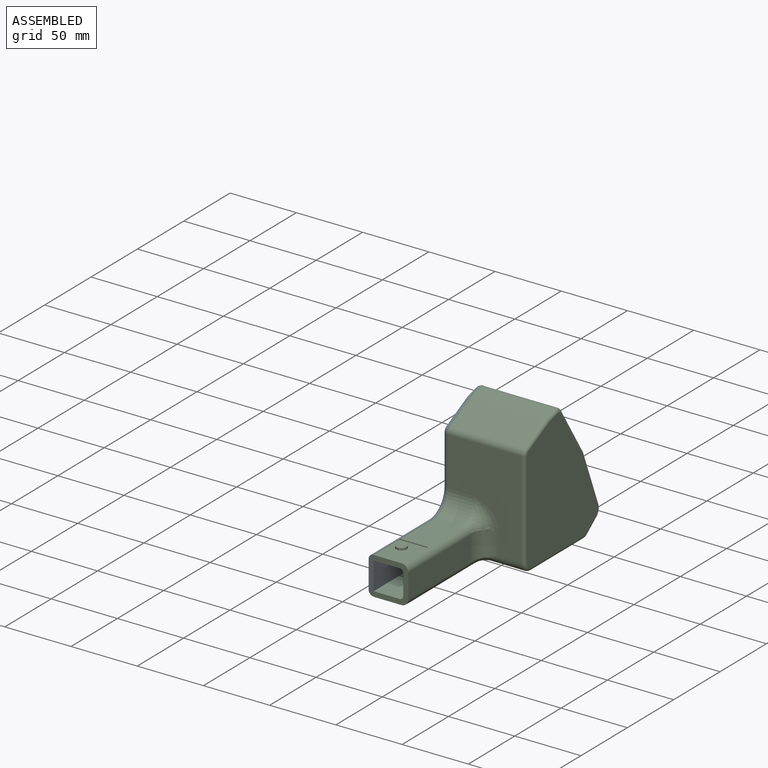
[diagram: assembled view]
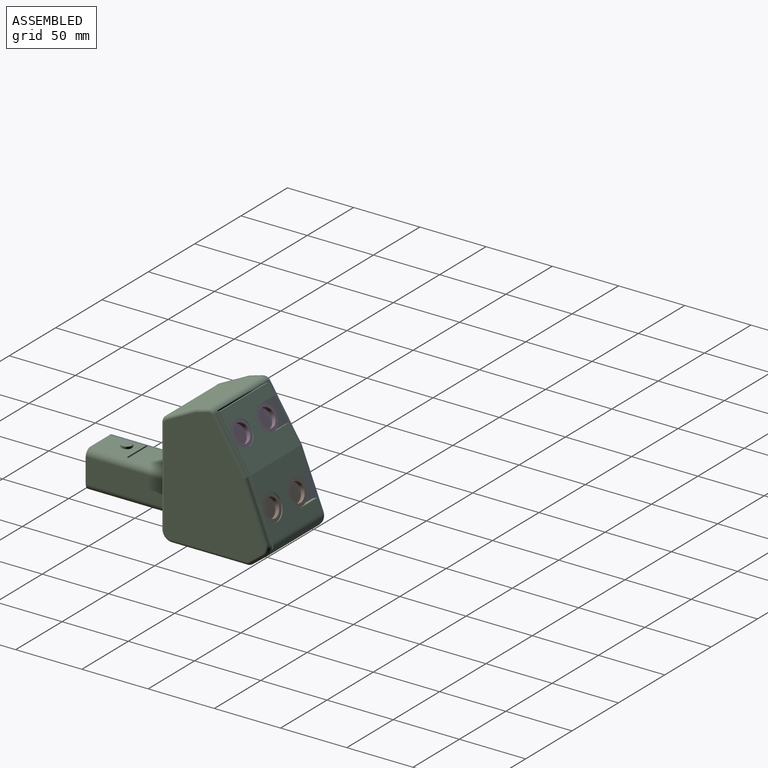
[diagram: assembled view, second angle]
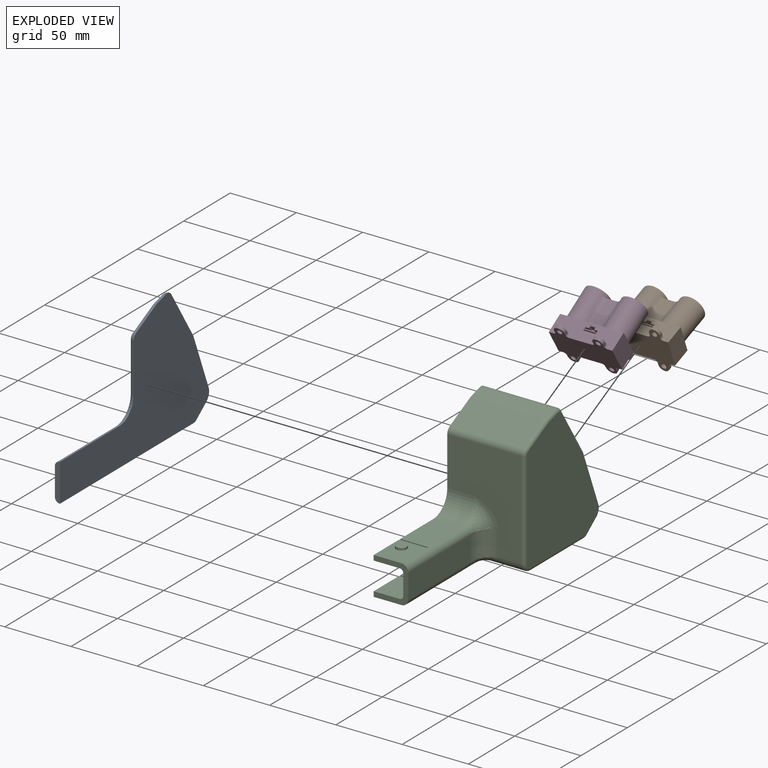
[diagram: exploded view]
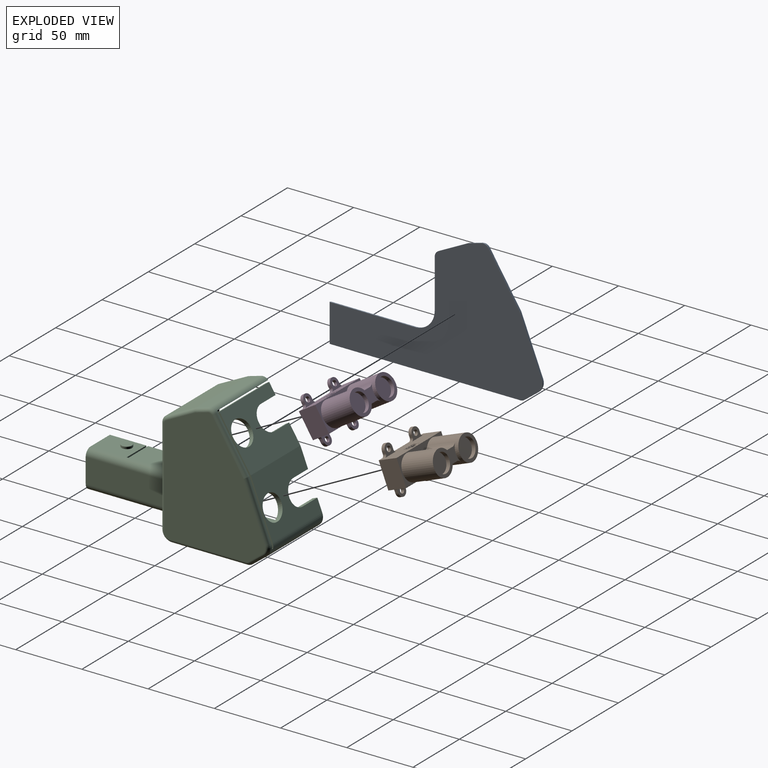
[diagram: exploded view, second angle]
ASSEMBLY  parts=4 mates=6
PART A: 35 faces, bbox 161.5x99.6x8.3 mm
  f0: plane 41.58x16.52mm, normal (-0.93,0.37,0), area 0.1mm2, adj f1,f15,f17,f22
  f1: cylinder r=7.62mm len=8.85mm, axis (0,0,-1), area 0mm2, adj f0,f2,f17,f21
  f2: plane 10.77x8.28mm, normal (-0.61,-0.79,0), area 0mm2, adj f1,f3,f17,f20
  f3: cylinder r=5.08mm len=3.1mm, axis (0,0,-1), area 0mm2, adj f2,f4,f17,f19
  f4: plane 144.07x0mm, normal (0,-1,0), area 0.4mm2, adj f3,f5,f17,f18
  f5: plane 28.58x3.81mm, normal (1,0,0), area 102.7mm2, adj f4,f6,f16,f17,f18,f32
  f6: plane 64.14x0mm, normal (0,1,0), area 0.2mm2, adj f5,f7,f17,f32
  f7: cylinder r=15.24mm len=15.24mm, axis (0,0,-1), area 0.1mm2, adj f6,f8,f17,f31
  f8: plane 36.89x0mm, normal (1,0,0), area 0.1mm2, adj f7,f9,f17,f30
  f9: cylinder r=5.08mm len=4.53mm, axis (0,0,-1), area 0mm2, adj f8,f10,f17,f29
  f10: plane 21.91x11.11mm, normal (0.45,0.89,0), area 0.1mm2, adj f9,f11,f17,f28
  f11: cylinder r=5.08mm len=0.9mm, axis (0,0,-1), area 0mm2, adj f10,f12,f17,f27
  f12: plane 9.39x2.68mm, normal (0.27,0.96,0), area 0mm2, adj f11,f13,f17,f26
  f13: cylinder r=5.08mm len=5.13mm, axis (0,0,-1), area 0mm2, adj f12,f14,f17,f25
  f14: plane 1.03x0.75mm, normal (-0.81,0.59,0), area 0mm2, adj f13,f15,f17,f24
  f15: plane 37.13x23.62mm, normal (-0.84,0.54,0), area 0.1mm2, adj f0,f14,f17,f23
  f16: plane 157.1x91.95mm, normal (0,0,1), area 6869.1mm2, adj f5,f18,f19,f20,f21,f22,f23,f24
  f17: plane 160.91x99.57mm, normal (0,0,-1), area 8543mm2, adj f0,f1,f2,f3,f4,f5,f6,f7
  f18: cylinder r=3.81mm len=144.07mm, axis (-1,0,0), area 862.2mm2, adj f4,f5,f16,f19
  f19: torus R=1.27mm, axis (0,0,1), area 14.5mm2, adj f3,f16,f18,f20
  f20: cylinder r=3.81mm len=13.09mm, axis (-0.79,0.61,0), area 81.3mm2, adj f2,f16,f19,f21
  f21: torus R=3.81mm, axis (0,0,1), area 48.3mm2, adj f1,f16,f20,f22
  f22: cylinder r=3.81mm len=42.99mm, axis (0.37,0.93,0), area 267mm2, adj f0,f16,f21,f23
  f23: cylinder r=3.81mm len=39.17mm, axis (0.54,0.84,0), area 262.2mm2, adj f15,f16,f22,f24
  f24: cylinder r=3.81mm len=3.83mm, axis (0.59,0.81,0), area 6.7mm2, adj f14,f16,f23,f25
  f25: torus R=1.27mm, axis (0,0,1), area 24mm2, adj f13,f16,f24,f26
  f26: cylinder r=3.81mm len=10.44mm, axis (0.96,-0.27,0), area 58.4mm2, adj f12,f16,f25,f27
  f27: torus R=1.27mm, axis (0,0,1), area 4.2mm2, adj f11,f16,f26,f28
  f28: cylinder r=3.81mm len=23.63mm, axis (0.89,-0.45,0), area 147mm2, adj f10,f16,f27,f29
  f29: torus R=1.27mm, axis (0,0,1), area 24.4mm2, adj f9,f16,f28,f30
  f30: cylinder r=3.81mm len=36.89mm, axis (0,-1,0), area 220.7mm2, adj f8,f16,f29,f31
  f31: torus R=19.05mm, axis (0,0,1), area 156.3mm2, adj f7,f16,f30,f32
  f32: cylinder r=3.81mm len=64.14mm, axis (1,0,0), area 383.8mm2, adj f5,f6,f16,f31
  f33: cylinder r=3.97mm len=7.94mm, axis (0,0,-1), area 44.3mm2, adj f16,f34
  f34: plane 7.94x7.94mm, normal (0,0,1), area 49.5mm2, adj f33
PART B: 74 faces, bbox 48x40x35.5 mm
  f0: plane 48x14.5mm, normal (0,0,1), area 581mm2, adj f10,f11,f12,f17,f22,f37,f38,f39
  f1: extruded ~22.5x3.45mm, area 88mm2, adj f2,f42,f43,f44
  f2: plane 22.5x6.46mm, normal (0,0,1), area 145.3mm2, adj f1,f3,f43,f44
  f3: extruded ~22.5x3.45mm, area 88mm2, adj f2,f41,f43,f44
  f4: extruded ~22.5x3.45mm, area 88mm2, adj f5,f41,f43,f44
  f5: plane 22.5x6.46mm, normal (0,0,-1), area 145.3mm2, adj f4,f6,f43,f44
  f6: extruded ~22.5x3.45mm, area 88mm2, adj f5,f42,f43,f44
  f7: plane 19x19mm, normal (0,1,0), area 129.6mm2, adj f42,f45
  f8: plane 19x19mm, normal (0,1,0), area 129.6mm2, adj f41,f46
  f9: plane 48x14.5mm, normal (0,0,-1), area 636mm2, adj f10,f11,f12,f27,f32,f33,f34,f35
  f10: plane 20x14.5mm, normal (-1,0,0), area 290mm2, adj f0,f9,f12,f43
  f11: plane 20x14.5mm, normal (1,0,0), area 290mm2, adj f0,f9,f12,f43
  f12: plane 48x35.52mm, normal (0,-1,0), area 1137.5mm2, adj f0,f9,f10,f11,f13,f14,f15,f16
  f13: plane 2.5x1.5mm, normal (-1,0,0), area 3.8mm2, adj f12,f14,f17,f40
  f14: cylinder r=4.01mm len=8.01mm, axis (0,-1,0), area 31.5mm2, adj f12,f13,f15,f17
  f15: plane 2.5x2mm, normal (1,0,0), area 5mm2, adj f12,f14,f17,f39
  f16: cylinder r=2mm len=4mm, axis (0,-1,0), area 31.4mm2, adj f12,f17
  f17: plane 12x7.76mm, normal (0,1,0), area 44.4mm2, adj f0,f13,f14,f15,f16,f39,f40
  f18: cylinder r=4.01mm len=8.01mm, axis (0,-1,0), area 31.5mm2, adj f12,f19,f20,f22
  f19: plane 2.5x1.5mm, normal (1,0,0), area 3.8mm2, adj f12,f18,f22,f38
  f20: plane 2.5x2mm, normal (-1,0,0), area 5mm2, adj f12,f18,f22,f37
  f21: cylinder r=2mm len=4mm, axis (0,-1,0), area 31.4mm2, adj f12,f22
  f22: plane 12x7.76mm, normal (0,1,0), area 44.4mm2, adj f0,f18,f19,f20,f21,f37,f38
  f23: cylinder r=4.01mm len=8.01mm, axis (0,-1,0), area 31.5mm2, adj f12,f24,f25,f27
  f24: plane 2.5x1.5mm, normal (-1,0,0), area 3.8mm2, adj f12,f23,f27,f36
  f25: plane 2.5x2mm, normal (1,0,0), area 5mm2, adj f12,f23,f27,f35
  f26: cylinder r=2mm len=4mm, axis (0,-1,0), area 31.4mm2, adj f12,f27
  f27: plane 12x7.76mm, normal (0,1,0), area 44.4mm2, adj f9,f23,f24,f25,f26,f35,f36
  f28: plane 2.5x1.5mm, normal (1,0,0), area 3.8mm2, adj f12,f29,f32,f33
  f29: cylinder r=4.01mm len=8.01mm, axis (0,-1,0), area 31.5mm2, adj f12,f28,f30,f32
  f30: plane 2.5x2mm, normal (-1,0,0), area 5mm2, adj f12,f29,f32,f34
  f31: cylinder r=2mm len=4mm, axis (0,-1,0), area 31.4mm2, adj f12,f32
  f32: plane 12x7.76mm, normal (0,1,0), area 44.4mm2, adj f9,f28,f29,f30,f31,f33,f34
  f33: cylinder r=2mm len=2.5mm, axis (0,-1,0), area 7.9mm2, adj f9,f12,f28,f32
  f34: cylinder r=2mm len=2.5mm, axis (0,1,0), area 7.9mm2, adj f9,f12,f30,f32
  f35: cylinder r=2mm len=2.5mm, axis (0,-1,0), area 7.9mm2, adj f9,f12,f25,f27
  f36: cylinder r=2mm len=2.5mm, axis (0,1,0), area 7.9mm2, adj f9,f12,f24,f27
  f37: cylinder r=2mm len=2.5mm, axis (0,1,0), area 7.9mm2, adj f0,f12,f20,f22
  f38: cylinder r=2mm len=2.5mm, axis (0,-1,0), area 7.9mm2, adj f0,f12,f19,f22
  f39: cylinder r=2mm len=2.5mm, axis (0,-1,0), area 7.9mm2, adj f0,f12,f15,f17
  f40: cylinder r=2mm len=2.5mm, axis (0,1,0), area 7.9mm2, adj f0,f12,f13,f17
  f41: cylinder r=9.5mm len=25.5mm, axis (0,1,0), area 1209.4mm2, adj f3,f4,f8,f43,f44
  f42: cylinder r=9.5mm len=25.5mm, axis (0,1,0), area 1209.4mm2, adj f1,f6,f7,f43,f44
  f43: plane 48x20mm, normal (0,1,0), area 301.3mm2, adj f0,f1,f2,f3,f4,f5,f6,f9
  f44: plane 13.36x12.69mm, normal (0,1,0), area 91.6mm2, adj f1,f2,f3,f4,f5,f6,f41,f42
  f45: cylinder r=7mm len=14mm, axis (0,1,0), area 131.9mm2, adj f7,f47
  f46: cylinder r=7mm len=14mm, axis (0,1,0), area 131.9mm2, adj f8,f48
  f47: plane 14x14mm, normal (0,1,0), area 153.9mm2, adj f45
  f48: plane 14x14mm, normal (0,1,0), area 153.9mm2, adj f46
  f49: plane 5.5x0.1mm, normal (1,0,0), area 0.5mm2, adj f0,f50,f52,f53
  f50: plane 10x0.1mm, normal (0,-1,0), area 1mm2, adj f0,f49,f51,f53
  f51: plane 5.5x0.1mm, normal (-1,0,0), area 0.5mm2, adj f0,f50,f52,f53
  f52: plane 10x0.1mm, normal (0,1,0), area 1mm2, adj f0,f49,f51,f53
  f53: plane 10x5.5mm, normal (0,0,1), area 24.8mm2, adj f49,f50,f51,f52,f54,f55,f56,f57
  f54: plane 3.9x2.62mm, normal (0,-1,0), area 10.2mm2, adj f53,f55,f61,f62
  f55: plane 3.9x2.55mm, normal (1,0,0), area 9.9mm2, adj f53,f54,f56,f62
  f56: plane 9.25x3.9mm, normal (0,1,0), area 36.1mm2, adj f53,f55,f57,f62
  f57: plane 3.9x2.55mm, normal (-1,0,0), area 9.9mm2, adj f53,f56,f58,f62
  f58: plane 3.9x2.82mm, normal (0,-1,0), area 11mm2, adj f53,f57,f59,f62
  f59: plane 3.9x1.75mm, normal (-1,0,0), area 6.8mm2, adj f53,f58,f60,f62
  f60: plane 3.9x3.81mm, normal (0,-1,0), area 14.8mm2, adj f53,f59,f61,f62
  f61: plane 3.9x1.75mm, normal (1,0,0), area 6.8mm2, adj f53,f54,f60,f62
  f62: plane 9.25x4.3mm, normal (0,0,1), area 24.3mm2, adj f54,f55,f56,f57,f58,f59,f60,f61
  f63: plane 3.9x0.71mm, normal (1,0,0), area 2.8mm2, adj f62,f64,f66,f67
  f64: plane 8.36x3.9mm, normal (0,-1,0), area 32.6mm2, adj f62,f63,f65,f67
  f65: plane 3.9x0.71mm, normal (-1,0,0), area 2.8mm2, adj f62,f64,f66,f67
  f66: plane 8.36x3.9mm, normal (0,1,0), area 32.6mm2, adj f62,f63,f65,f67
  f67: plane 8.36x0.71mm, normal (0,0,1), area 5.9mm2, adj f63,f64,f65,f66
  f68: plane 14x14mm, normal (0,-1,0), area 153.9mm2, adj f70
  f69: plane 14x14mm, normal (0,1,0), area 153.9mm2, adj f70
  f70: cylinder r=7mm len=20.5mm, axis (0,1,0), area 901.6mm2, adj f68,f69
  f71: plane 14x14mm, normal (0,-1,0), area 153.9mm2, adj f73
  f72: plane 14x14mm, normal (0,1,0), area 153.9mm2, adj f73
  f73: cylinder r=7mm len=20.5mm, axis (0,1,0), area 901.6mm2, adj f71,f72
PART C: 125 faces, bbox 59x162x102.3 mm
  f0: plane 41.58x16.52mm, normal (0,0.93,0.37), area 48.7mm2, adj f13,f74,f80,f99
  f1: plane 1.27x1.18mm, normal (0,0.36,-0.93), area 1.6mm2, adj f3,f74,f77,f79
  f2: plane 53.76x41.75mm, normal (0,0.93,0.37), area 1673.1mm2, adj f6,f12,f14,f64,f65,f66,f67,f77
  f3: plane 1.27x1.09mm, normal (0,-0.53,0.85), area 1.6mm2, adj f1,f74,f77,f79
  f4: plane 53.59x44.83mm, normal (0,-0.93,-0.36), area 1854mm2, adj f5,f12,f14,f35,f64,f65,f66,f67
  f5: plane 53.59x36.86mm, normal (0,-0.85,-0.53), area 1607.7mm2, adj f4,f9,f12,f68,f69,f70,f71,f76
  f6: plane 53.74x37.27mm, normal (0,0.84,0.54), area 1633.3mm2, adj f2,f9,f12,f68,f69,f70,f71,f76
  f7: plane 44.57x17.39mm, normal (0,-0.93,-0.36), area 21.5mm2, adj f8,f19,f74,f110
  f8: plane 55.47x38.52mm, normal (0,-0.85,-0.53), area 48mm2, adj f7,f17,f19,f36,f74,f75,f109
  f9: plane 9.42x7.6mm, normal (-1,0,0), area 29.4mm2, adj f5,f6,f70,f76
  f10: plane 53.82x19.76mm, normal (0,0,-1), area 1063.5mm2, adj f17,f20,f60,f73
  f11: plane 27.46x19.76mm, normal (0,0,1), area 542.7mm2, adj f25,f29,f63,f72
  f12: plane 29.24x17.15mm, normal (-1,0,0), area 108.3mm2, adj f2,f4,f5,f6,f66,f68
  f13: plane 37.44x23.82mm, normal (0,0.84,0.54), area 48.2mm2, adj f0,f74,f81,f100
  f14: plane 132.18x27.58mm, normal (-1,0,0), area 553mm2, adj f2,f4,f15,f28,f34,f35,f48,f62
  f15: plane 115.33x55.95mm, normal (0,0,-1), area 4418.6mm2, adj f14,f48,f49,f53,f62,f91
  f16: plane 35.4x21.03mm, normal (0,0,1), area 744.5mm2, adj f17,f50,f51,f60
  f17: plane 90.75x74.8mm, normal (-1,0,0), area 554.6mm2, adj f8,f10,f16,f20,f31,f32,f33,f36
  f18: plane 27.46x3.81mm, normal (-1,0,0), area 104.6mm2, adj f23,f26,f29,f59
  f19: plane 90.5x73.66mm, normal (-1,0,0), area 3299.9mm2, adj f7,f8,f104,f105,f106,f107,f108,f109
  f20: plane 75.76x53.79mm, normal (0,1,0), area 3185.2mm2, adj f10,f17,f27,f41,f72,f73,f118,f120
  f21: plane 65.27x32.9mm, normal (-1,0,0), area 1204.6mm2, adj f101,f102,f103,f114,f117,f120
  f22: plane 66.83x18.57mm, normal (1,0,0), area 1228.1mm2, adj f29,f51,f52,f53,f55,f56
  f23: plane 27.46x21.03mm, normal (0,0,1), area 528.1mm2, adj f18,f29,f44,f51,f59
  f24: plane 27.46x21.03mm, normal (0,0,-1), area 528.1mm2, adj f25,f29,f46,f53,f63
  f25: plane 27.46x3.81mm, normal (-1,0,0), area 104.6mm2, adj f11,f24,f29,f63
  f26: plane 27.46x19.76mm, normal (0,0,-1), area 542.7mm2, adj f18,f29,f59,f73
  f27: plane 82.55x15.88mm, normal (-1,0,0), area 1310.5mm2, adj f20,f29,f72,f73
  f28: plane 116.81x54.05mm, normal (0,0,1), area 4164.3mm2, adj f14,f35,f41,f62,f72,f111,f113,f114
  f29: plane 28.58x26.11mm, normal (0,-1,0), area 270.5mm2, adj f11,f18,f22,f23,f24,f25,f26,f27
  f30: plane 94.49x76.45mm, normal (1,0,0), area 5457.1mm2, adj f88,f89,f90,f91,f92,f93,f94,f95
  f31: plane 73.08x55.95mm, normal (0,-1,0), area 2780.9mm2, adj f17,f38,f49,f50,f54,f55,f88
  f32: plane 55.95x9.39mm, normal (0,-0.27,0.96), area 546.4mm2, adj f17,f81,f83,f96
  f33: plane 55.95x21.91mm, normal (0,-0.45,0.89), area 1374.2mm2, adj f17,f38,f83,f92
  f34: plane 55.95x10.77mm, normal (0,0.61,-0.79), area 760.3mm2, adj f14,f48,f80,f95
  f35: plane 54.05x12.61mm, normal (0,-0.61,0.79), area 859.6mm2, adj f4,f14,f28,f78,f110
  f36: plane 54.05x10.45mm, normal (0,0.27,-0.96), area 587.4mm2, adj f8,f17,f82,f109
  f37: plane 54.05x21.98mm, normal (0,0.45,-0.89), area 1332mm2, adj f17,f82,f107,f123
  f38: cylinder r=5.08mm len=55.95mm, axis (-1,0,0), area 313.1mm2, adj f17,f31,f33,f90
  f39: plane 41.91x34.22mm, normal (0,-0.93,-0.36), area 1539.2mm2, adj f41,f85,f101,f116
  f40: plane 41.91x36.52mm, normal (0,0.93,0.36), area 1642.6mm2, adj f41,f84,f104,f113
  f41: plane 77.31x40.42mm, normal (-1,0,0), area 261.8mm2, adj f20,f28,f39,f40,f42,f43,f84,f85
  f42: plane 41.91x30.29mm, normal (0,-0.85,-0.53), area 1498.9mm2, adj f41,f85,f103,f118
  f43: plane 41.91x39.12mm, normal (0,0.85,0.53), area 1936.2mm2, adj f41,f84,f106,f123
  f44: cylinder r=3.97mm len=7.94mm, axis (0,0,-1), area 38mm2, adj f23,f87
  f45: plane 7.43x7.43mm, normal (0,0,1), area 43.4mm2, adj f87
  f46: cylinder r=3.97mm len=7.94mm, axis (0,0,1), area 38mm2, adj f24,f86
  f47: plane 7.43x7.43mm, normal (0,0,-1), area 43.4mm2, adj f86
  f48: cylinder r=5.08mm len=55.95mm, axis (-1,0,0), area 186.4mm2, adj f14,f15,f34,f93
  f49: cylinder r=7.62mm len=34.92mm, axis (-1,0,0), area 277.2mm2, adj f15,f31,f56,f57,f89
  f50: cylinder r=15.24mm len=21.03mm, axis (-1,0,0), area 503.5mm2, adj f16,f17,f31,f52
  f51: cylinder r=5.08mm len=64.14mm, axis (0,1,0), area 511.8mm2, adj f16,f22,f23,f29,f52,f58
  f52: torus R=20.32mm, axis (1,0,0), area 64.1mm2, adj f22,f50,f51,f54
  f53: cylinder r=5.08mm len=87mm, axis (0,-1,0), area 595.3mm2, adj f15,f22,f24,f29,f57,f61
  f54: bspline ~23.57x17.78mm, area 274.3mm2, adj f31,f52,f55
  f55: cylinder r=12.7mm len=16.03mm, axis (0,0,1), area 319.9mm2, adj f22,f31,f54,f56
  f56: torus R=20.32mm, axis (1,0,0), area 30.6mm2, adj f22,f49,f55,f57
  f57: bspline ~20.32x17.78mm, area 161.2mm2, adj f49,f53,f56
  f58: plane 4.15x1.27mm, normal (-1,0,0), area 5.3mm2, adj f51,f59,f60,f73
  f59: plane 21.03x4.15mm, normal (0,1,0), area 80.3mm2, adj f18,f23,f26,f58,f73
  f60: plane 21.03x4.15mm, normal (0,-1,0), area 80.3mm2, adj f10,f16,f17,f58,f73
  f61: plane 4.15x1.27mm, normal (-1,0,0), area 5.3mm2, adj f53,f62,f63,f72
  f62: plane 21.03x4.15mm, normal (0,-1,0), area 80.3mm2, adj f14,f15,f28,f61,f72
  f63: plane 21.03x4.15mm, normal (0,1,0), area 80.3mm2, adj f11,f24,f25,f61,f72
  f64: plane 15.77x3.45mm, normal (0,-0.36,0.93), area 58.5mm2, adj f2,f4,f14,f65
  f65: cylinder r=9.5mm len=19.05mm, axis (0,-0.93,-0.36), area 108.8mm2, adj f2,f4,f64,f66
  f66: plane 15.77x3.34mm, normal (0,0.36,-0.93), area 56.5mm2, adj f2,f4,f12,f65
  f67: cylinder r=9.5mm len=19.03mm, axis (0,-0.93,-0.36), area 215.8mm2, adj f2,f4
  f68: plane 15.77x2.85mm, normal (0,-0.53,0.85), area 53mm2, adj f5,f6,f12,f69
  f69: cylinder r=9.5mm len=17.88mm, axis (0,-0.85,-0.53), area 98.7mm2, adj f5,f6,f68,f70
  f70: plane 15.77x2.75mm, normal (0,0.53,-0.85), area 51.3mm2, adj f5,f6,f9,f69
  f71: cylinder r=9.5mm len=19mm, axis (0,-0.85,-0.53), area 195.8mm2, adj f5,f6
  f72: cylinder r=2.54mm len=84.07mm, axis (0,1,0), area 329.9mm2, adj f11,f20,f27,f28,f29,f61,f62,f63
  f73: cylinder r=2.54mm len=82.55mm, axis (0,-1,0), area 327.7mm2, adj f10,f20,f26,f27,f29,f58,f59,f60
  f74: plane 84.81x44.06mm, normal (-1,0,0), area 324mm2, adj f0,f1,f3,f7,f8,f13,f75,f78
  f75: plane 54.86x2.64mm, normal (0,0.53,-0.85), area 170.7mm2, adj f8,f17,f74,f81
  f76: plane 53.59x2.71mm, normal (0,-0.53,0.85), area 171.5mm2, adj f5,f6,f9,f77
  f77: plane 83.39x43.38mm, normal (1,0,0), area 319.8mm2, adj f1,f2,f3,f4,f5,f6,f76,f78
  f78: plane 4.2x1.94mm, normal (0,-0.36,0.93), area 4mm2, adj f35,f74,f77,f80,f110
  f79: plane 1.27x0.23mm, normal (0,0.93,0.36), area 0.3mm2, adj f1,f3,f74,f77
  f80: cylinder r=7.62mm len=55.95mm, axis (-1,0,0), area 546.7mm2, adj f0,f2,f14,f34,f74,f77,f78,f97
  f81: cylinder r=5.08mm len=55.95mm, axis (-1,0,0), area 314.8mm2, adj f13,f17,f32,f74,f75,f98
  f82: cylinder r=5.08mm len=54.05mm, axis (-1,0,0), area 52.5mm2, adj f17,f36,f37,f108
  f83: cylinder r=5.08mm len=55.95mm, axis (-1,0,0), area 54.4mm2, adj f17,f32,f33,f94
  f84: cylinder r=5.08mm len=41.91mm, axis (-1,0,0), area 40.3mm2, adj f40,f41,f43,f105
  f85: cylinder r=5.08mm len=41.91mm, axis (-1,0,0), area 40.3mm2, adj f39,f41,f42,f102
  f86: torus R=3.71mm, axis (0,0,-1), area 9.7mm2, adj f46,f47
  f87: torus R=3.71mm, axis (0,0,1), area 9.7mm2, adj f44,f45
  f88: cylinder r=2.54mm len=73.08mm, axis (0,0,1), area 291.6mm2, adj f30,f31,f89,f90
  f89: torus R=5.08mm, axis (-1,0,0), area 42mm2, adj f30,f49,f88,f91
  f90: torus R=2.54mm, axis (-1,0,0), area 18.3mm2, adj f30,f38,f88,f92
  f91: cylinder r=2.54mm len=57.07mm, axis (0,-1,0), area 227.7mm2, adj f15,f30,f89,f93
  f92: cylinder r=2.54mm len=23.06mm, axis (0,0.89,0.45), area 98mm2, adj f30,f33,f90,f94
  f93: torus R=2.54mm, axis (-1,0,0), area 10.9mm2, adj f30,f48,f91,f95
  f94: torus R=2.54mm, axis (-1,0,0), area 3.2mm2, adj f30,f83,f92,f96
  f95: cylinder r=2.54mm len=12.32mm, axis (0,-0.79,-0.61), area 54.2mm2, adj f30,f34,f93,f97
  f96: cylinder r=2.54mm len=10.09mm, axis (0,0.96,0.27), area 39mm2, adj f30,f32,f94,f98
  f97: torus R=5.08mm, axis (-1,0,0), area 34.6mm2, adj f30,f80,f95,f99
  f98: torus R=2.54mm, axis (-1,0,0), area 21.3mm2, adj f30,f81,f96,f100
  f99: cylinder r=2.54mm len=42.52mm, axis (0,-0.37,0.93), area 178mm2, adj f0,f30,f97,f100
  f100: cylinder r=2.54mm len=38.8mm, axis (0,-0.54,0.84), area 176.6mm2, adj f13,f30,f98,f99
  f101: cylinder r=1.27mm len=34.68mm, axis (0,0.36,-0.93), area 73.3mm2, adj f21,f39,f102,f115
  f102: torus R=3.81mm, axis (1,0,0), area 1.7mm2, adj f21,f85,f101,f103
  f103: cylinder r=1.27mm len=30.96mm, axis (0,0.53,-0.85), area 71.3mm2, adj f21,f42,f102,f117
  f104: cylinder r=1.27mm len=36.98mm, axis (0,-0.36,0.93), area 78.2mm2, adj f19,f40,f105,f112
  f105: torus R=6.35mm, axis (1,0,0), area 2.1mm2, adj f19,f84,f104,f106
  f106: cylinder r=1.27mm len=39.8mm, axis (0,-0.53,0.85), area 91.8mm2, adj f19,f43,f105,f107,f124
  f107: cylinder r=1.27mm len=22.56mm, axis (0,0.89,0.45), area 49.1mm2, adj f19,f37,f106,f108,f124
  f108: torus R=3.81mm, axis (1,0,0), area 1.8mm2, adj f19,f82,f107,f109
  f109: cylinder r=1.27mm len=11.15mm, axis (0,0.96,0.27), area 22mm2, adj f8,f19,f36,f108
  f110: cylinder r=1.27mm len=13.67mm, axis (0,-0.79,-0.61), area 31.1mm2, adj f7,f19,f35,f74,f78,f111
  f111: cylinder r=1.27mm len=22.57mm, axis (0,1,0), area 44.6mm2, adj f19,f28,f110,f112
  f112: sphere r=1.27mm, area 2.1mm2, adj f104,f111,f113
  f113: cylinder r=1.27mm len=41.91mm, axis (1,0,0), area 63.8mm2, adj f28,f40,f41,f112
  f114: cylinder r=1.27mm len=32.9mm, axis (0,1,0), area 65.6mm2, adj f21,f28,f115,f121
  f115: sphere r=1.27mm, area 4.3mm2, adj f101,f114,f116
  f116: cylinder r=1.27mm len=41.91mm, axis (-1,0,0), area 103.4mm2, adj f28,f39,f41,f115
  f117: torus R=0.25mm, axis (1,0,0), area 2.1mm2, adj f21,f103,f118,f119
  f118: cylinder r=1.52mm len=41.91mm, axis (1,0,0), area 164.5mm2, adj f20,f41,f42,f117,f119
  f119: bspline ~1.88x1.52mm, area 2.1mm2, adj f117,f118,f120
  f120: cylinder r=1.52mm len=65.27mm, axis (0,0,-1), area 155.6mm2, adj f20,f21,f119,f121
  f121: bspline ~1.88x1.52mm, area 2.1mm2, adj f114,f120,f122
  f122: cylinder r=1.52mm len=34.29mm, axis (-1,0,0), area 79mm2, adj f20,f28,f72,f121
  f123: cylinder r=1.27mm len=54.05mm, axis (-1,0,0), area 74.4mm2, adj f17,f20,f37,f41,f43,f124
  f124: sphere r=1.27mm, area 0.9mm2, adj f106,f107,f123
PART D: same geometry as B
PLACE A rot(axis=(0.58,-0.58,-0.58),120deg) t=(-32.41,-107.55,401.37)mm
PLACE B rot(axis=(1,0,0),21.3deg) t=(-26.52,27.27,76.01)mm
PLACE C t=(-34.87,-91.58,63.58)mm
PLACE D rot(axis=(1,0,0),32.1deg) t=(-26.52,9.77,114.96)mm
MATE cylindrical B.f41 <-> C.f67  axis (0,0.93,0.36) through (10.87,49.07,95.12)mm
MATE cylindrical D.f41 <-> C.f71  axis (0,0.85,0.53) through (10.87,27.59,137.83)mm
MATE planar A.f17 <-> C.f17  axis (1,0,0) through (-32.41,2.48,98.78)mm
MATE planar B.f44 <-> C.f4  axis (0,0.93,0.36) through (-2.88,58.15,98.66)mm
MATE planar A.f5 <-> C.f29  axis (0,-1,0) through (-36.22,-91.58,67.52)mm
MATE planar D.f44 <-> C.f5  axis (0,0.85,0.53) through (-2.88,38.37,138.99)mm
